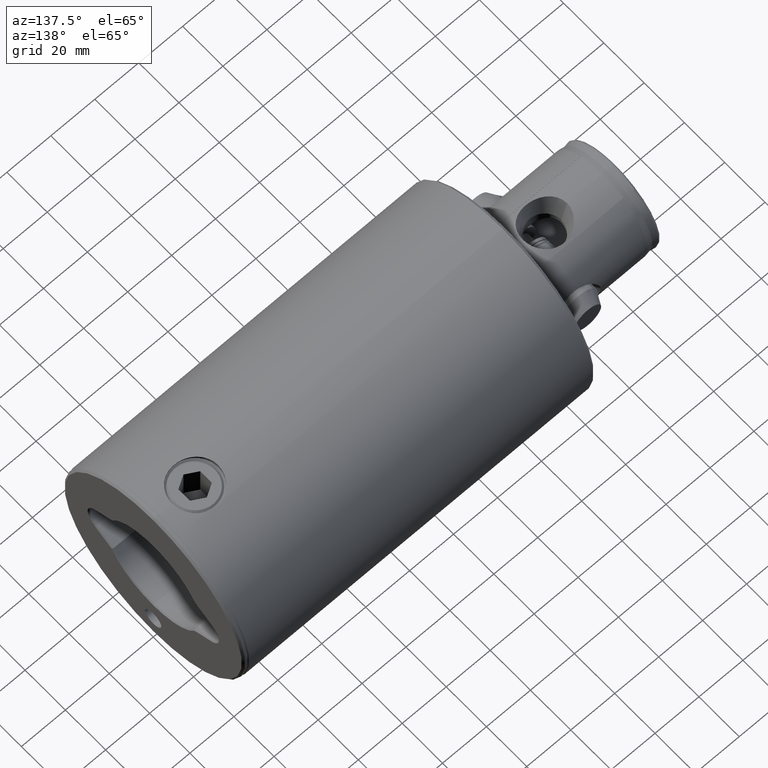
[diagram: clean part render]
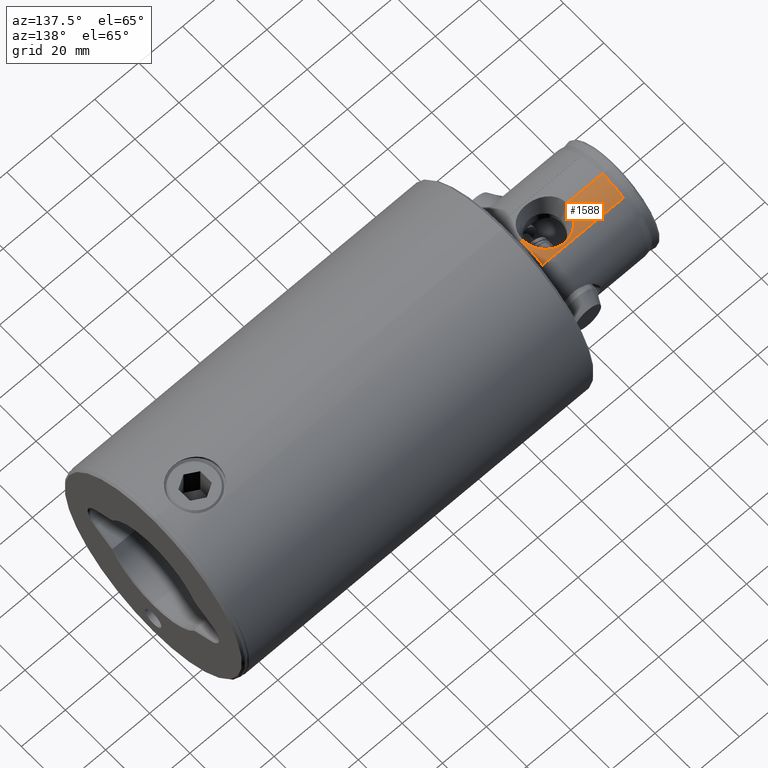
[diagram: same view with one face highlighted and labeled with its STEP entity id]
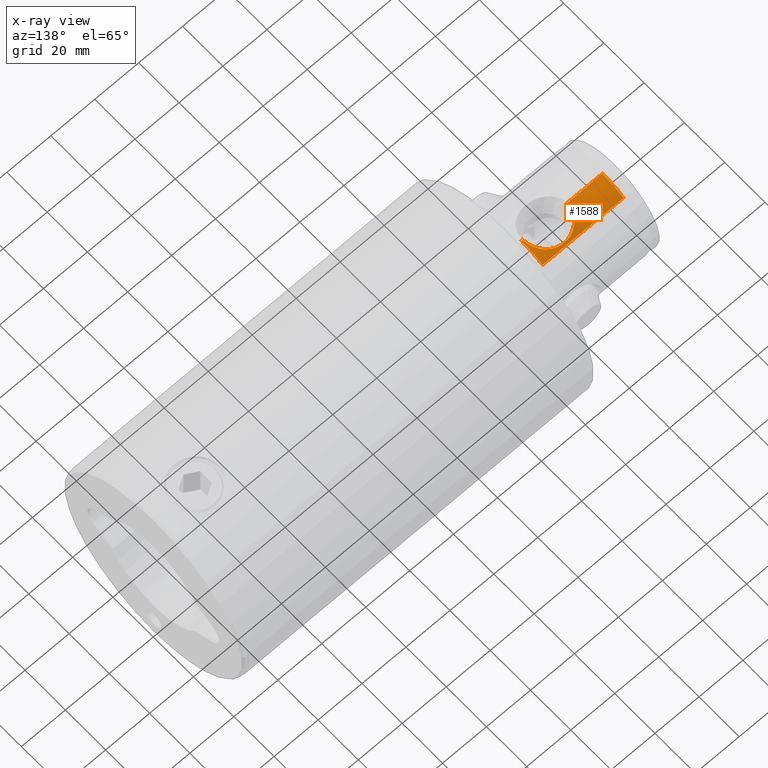
[diagram: x-ray of the same camera — body ghosted, the highlighted face saturated]
A machine part, auxiliary view. The second image highlights one B-rep face of the part: STEP entity #1588.
The next image is the same camera in x-ray: the body ghosted, the highlighted face saturated — about 0% of this face is hidden behind the body in this view.
In plain terms, the highlighted cylindrical surface (partial cylindrical patch) has radius 23 mm, axis along (-1, 0, 0).
Its self-contained STEP definition (entity closure, byte-faithful):
#232 = CARTESIAN_POINT ( 'NONE',  ( 22.71813281594296200, 3.170761861276858900, 168.6844600103815700 ) ) ;
#253 = VERTEX_POINT ( 'NONE', #3894 ) ;
#280 = CARTESIAN_POINT ( 'NONE',  ( 22.71387815539590000, 3.160618468467413200, 187.7014117444485900 ) ) ;
#318 = ORIENTED_EDGE ( 'NONE', *, *, #1888, .F. ) ;
#500 = EDGE_LOOP ( 'NONE', ( #3610, #3334, #1682, #2904, #318, #5067 ) ) ;
#539 = AXIS2_PLACEMENT_3D ( 'NONE', #792, #3493, #4639 ) ;
#543 = CIRCLE ( 'NONE', #539, 23.00000000000000400 ) ;
#621 = CARTESIAN_POINT ( 'NONE',  ( 20.87641210467689800, 9.499939100259105400, 177.5624718942782500 ) ) ;
#638 = CARTESIAN_POINT ( 'NONE',  ( 22.87542745341972500, 1.614374367582114100, 188.1261220397611600 ) ) ;
#650 = CARTESIAN_POINT ( 'NONE',  ( 22.48529584989710600, 4.523971437700147600, 204.3892907336632200 ) ) ;
#653 = CARTESIAN_POINT ( 'NONE',  ( 21.95904793986259000, 6.616008521264852500, 170.9553838362661500 ) ) ;
#663 = CARTESIAN_POINT ( 'NONE',  ( 21.85878400355158400, 7.170288782553583000, 204.3784447546312600 ) ) ;
#665 = CARTESIAN_POINT ( 'NONE',  ( 22.15819509866686600, 5.913370880325223000, 170.3045572128625900 ) ) ;
#687 = CARTESIAN_POINT ( 'NONE',  ( 21.21868447772696000, 8.706727680758517000, 174.1258356743447300 ) ) ;
#734 = AXIS2_PLACEMENT_3D ( 'NONE', #3079, #1511, #1959 ) ;
#792 = CARTESIAN_POINT ( 'NONE',  ( -0.07000000000000000700, 0.0000000000000000000, 167.5000000000000000 ) ) ;
#983 = DIRECTION ( 'NONE',  ( 0.0000000000000000000, 0.0000000000000000000, 1.000000000000000000 ) ) ;
#1012 = CARTESIAN_POINT ( 'NONE',  ( 22.93000000000000300, -1.657710971707994000E-013, 204.3969897273732700 ) ) ;
#1022 = CARTESIAN_POINT ( 'NONE',  ( 22.16101311719293300, 5.902792607974545200, 186.1043129167920300 ) ) ;
#1037 = CARTESIAN_POINT ( 'NONE',  ( 21.75878781003203600, 7.259897403231713400, 171.6576700004557700 ) ) ;
#1072 = CARTESIAN_POINT ( 'NONE',  ( 20.92340394279245400, 9.395806677817409600, 179.8170429585055700 ) ) ;
#1353 = LINE ( 'NONE', #3358, #2769 ) ;
#1413 = CARTESIAN_POINT ( 'NONE',  ( 22.22524399175491200, 5.656081419169866300, 186.3035758216765900 ) ) ;
#1430 = CARTESIAN_POINT ( 'NONE',  ( 21.44513300117665700, 8.132082611923017600, 183.4386958737518700 ) ) ;
#1447 = CARTESIAN_POINT ( 'NONE',  ( 21.63015222194354700, 7.630875192684288600, 184.2504620235778800 ) ) ;
#1461 = CARTESIAN_POINT ( 'NONE',  ( 20.90341073441797100, 9.440184702084954100, 179.4943852145340800 ) ) ;
#1511 = DIRECTION ( 'NONE',  ( 0.0000000000000000000, 0.0000000000000000000, 1.000000000000000000 ) ) ;
#1588 = ADVANCED_FACE ( 'NONE', ( #1895 ), #4212, .T. ) ;
#1635 = CARTESIAN_POINT ( 'NONE',  ( 22.93000000000000300, 1.269368155267936500E-015, 188.2660561681995500 ) ) ;
#1682 = ORIENTED_EDGE ( 'NONE', *, *, #3363, .T. ) ;
#1782 = CARTESIAN_POINT ( 'NONE',  ( 21.27059927753126800, 8.579163075772733300, 173.8327959959385400 ) ) ;
#1804 = CARTESIAN_POINT ( 'NONE',  ( 20.86334365088069700, 9.528620291292226000, 178.2071060570801000 ) ) ;
#1819 = CARTESIAN_POINT ( 'NONE',  ( 22.57262398154612300, 4.049661866725215600, 169.0835080279760500 ) ) ;
#1888 = EDGE_CURVE ( 'NONE', #2580, #3330, #1353, .T. ) ;
#1895 = FACE_OUTER_BOUND ( 'NONE', #500, .T. ) ;
#1959 = DIRECTION ( 'NONE',  ( 1.000000000000000000, 0.0000000000000000000, 0.0000000000000000000 ) ) ;
#2095 = DIRECTION ( 'NONE',  ( 0.0000000000000000000, 0.0000000000000000000, 1.000000000000000000 ) ) ;
#2104 = VERTEX_POINT ( 'NONE', #3236 ) ;
#2185 = CARTESIAN_POINT ( 'NONE',  ( 21.38239134189496600, 8.295668889189112600, 173.2569547478507300 ) ) ;
#2202 = CARTESIAN_POINT ( 'NONE',  ( 22.34654799579782400, 5.154400670018701700, 169.7303418809283600 ) ) ;
#2214 = CARTESIAN_POINT ( 'NONE',  ( 22.89607407092442800, 1.289853053561568900, 168.2208150220196200 ) ) ;
#2227 = CARTESIAN_POINT ( 'NONE',  ( 22.64680025277282000, 3.626937374856779700, 204.3920867424903300 ) ) ;
#2237 = CARTESIAN_POINT ( 'NONE',  ( 21.23070740619014200, 8.868141807118455200, 204.3675721991081400 ) ) ;
#2407 = EDGE_CURVE ( 'NONE', #3973, #2104, #543, .T. ) ;
#2527 = VERTEX_POINT ( 'NONE', #3182 ) ;
#2568 = CARTESIAN_POINT ( 'NONE',  ( 21.07879004462104400, 9.043785352656469100, 181.3941933624966200 ) ) ;
#2580 = VERTEX_POINT ( 'NONE', #1635 ) ;
#2584 = CARTESIAN_POINT ( 'NONE',  ( 22.39153244543899700, 4.968384875512219500, 204.3876674977225600 ) ) ;
#2589 = CARTESIAN_POINT ( 'NONE',  ( 22.93000000000000300, -3.800138617954108700E-019, 168.1339438318005100 ) ) ;
#2601 = CARTESIAN_POINT ( 'NONE',  ( 22.93000000000001000, 0.9045441852154809700, 204.3969897273733200 ) ) ;
#2606 = CARTESIAN_POINT ( 'NONE',  ( 22.93000000000000700, 0.3258471756662523800, 188.2660561681995500 ) ) ;
#2618 = CARTESIAN_POINT ( 'NONE',  ( 22.87683406062028300, 1.810785388000757200, 204.3960692491430700 ) ) ;
#2624 = CARTESIAN_POINT ( 'NONE',  ( 20.87679103490181000, 9.499104714878926700, 178.8509457678297600 ) ) ;
#2640 = CARTESIAN_POINT ( 'NONE',  ( 21.00225479971619800, 9.218288701517517200, 180.7767434335825100 ) ) ;
#2769 = VECTOR ( 'NONE', #983, 1000.000000000000000 ) ;
#2861 = CARTESIAN_POINT ( 'NONE',  ( 22.93000000000000300, 0.0000000000000000000, 167.5000000000000000 ) ) ;
#2904 = ORIENTED_EDGE ( 'NONE', *, *, #3210, .T. ) ;
#2981 = CARTESIAN_POINT ( 'NONE',  ( 21.62688782173729500, 7.640115576512146200, 172.1626015208115100 ) ) ;
#3000 = CARTESIAN_POINT ( 'NONE',  ( 22.22254125005030500, 5.666751708854228300, 170.1047277115100400 ) ) ;
#3028 = CARTESIAN_POINT ( 'NONE',  ( 22.51912190452975400, 4.337142458028830900, 169.2327105463265900 ) ) ;
#3041 = CARTESIAN_POINT ( 'NONE',  ( 22.93000000000000300, 0.3221748880474750700, 168.1339438318004800 ) ) ;
#3079 = CARTESIAN_POINT ( 'NONE',  ( -0.07000000000000000700, 0.0000000000000000000, 167.5000000000000000 ) ) ;
#3180 = LINE ( 'NONE', #2861, #4079 ) ;
#3182 = CARTESIAN_POINT ( 'NONE',  ( 22.93000000000000300, -3.800138617954108700E-019, 168.1339438318005100 ) ) ;
#3210 = EDGE_CURVE ( 'NONE', #253, #3330, #4134, .T. ) ;
#3236 = CARTESIAN_POINT ( 'NONE',  ( 22.93000000000000300, 0.0000000000000000000, 167.5000000000000000 ) ) ;
#3330 = VERTEX_POINT ( 'NONE', #1012 ) ;
#3334 = ORIENTED_EDGE ( 'NONE', *, *, #2407, .F. ) ;
#3358 = CARTESIAN_POINT ( 'NONE',  ( 22.93000000000000300, 0.0000000000000000000, 167.5000000000000000 ) ) ;
#3359 = CARTESIAN_POINT ( 'NONE',  ( 21.76200346940580100, 7.250209475754267900, 184.7542324808671600 ) ) ;
#3363 = EDGE_CURVE ( 'NONE', #3973, #253, #4636, .T. ) ;
#3379 = CARTESIAN_POINT ( 'NONE',  ( 21.22121159782992500, 8.700554704185757200, 182.2889485965027600 ) ) ;
#3395 = CARTESIAN_POINT ( 'NONE',  ( 21.44207803397407000, 8.140152053437896400, 172.9753613800992300 ) ) ;
#3409 = CARTESIAN_POINT ( 'NONE',  ( 21.38532123132872800, 8.288096534869097800, 183.1572577636085800 ) ) ;
#3423 = CARTESIAN_POINT ( 'NONE',  ( 22.40621247381081100, 4.888671184591376400, 169.5557834911254500 ) ) ;
#3457 = EDGE_CURVE ( 'NONE', #2104, #2527, #3180, .T. ) ;
#3493 = DIRECTION ( 'NONE',  ( 0.0000000000000000000, 0.0000000000000000000, -1.000000000000000000 ) ) ;
#3593 = VECTOR ( 'NONE', #2095, 1000.000000000000000 ) ;
#3610 = ORIENTED_EDGE ( 'NONE', *, *, #3457, .F. ) ;
#3620 = EDGE_CURVE ( 'NONE', #2527, #2580, #3979, .T. ) ;
#3739 = CARTESIAN_POINT ( 'NONE',  ( 22.79563345927069000, 2.562301675494139000, 168.4811909222073900 ) ) ;
#3755 = CARTESIAN_POINT ( 'NONE',  ( 21.27329535787796600, 8.572461523809773000, 182.5819277342390600 ) ) ;
#3773 = CARTESIAN_POINT ( 'NONE',  ( 21.07686965761223500, 9.048241734191087500, 175.0201382333533200 ) ) ;
#3789 = CARTESIAN_POINT ( 'NONE',  ( 20.92274040921124000, 9.397284982761100000, 176.5928616501597000 ) ) ;
#3894 = CARTESIAN_POINT ( 'NONE',  ( 20.39338192968112700, 10.49999999999999800, 204.3530803800439300 ) ) ;
#3973 = VERTEX_POINT ( 'NONE', #4133 ) ;
#3979 = B_SPLINE_CURVE_WITH_KNOTS ( 'NONE', 3,
 ( #2589, #3041, #4995, #2214, #4515, #3739, #232, #1819, #3028, #3423, #2202, #3000, #665, #4124, #653, #1037, #2981, #3395, #2185, #1782, #687, #3773, #4973, #3789, #4930, #621, #1804, #2624, #1461, #1072, #2640, #2568, #3379, #3755, #3409, #1430, #1447, #3359, #4530, #4566, #1022, #1413, #4944, #4186, #4583, #280, #4154, #4138, #638, #4552, #4961, #2606, #4172 ),
 .UNSPECIFIED., .F., .F.,
 ( 4, 2, 2, 2, 2, 2, 2, 2, 2, 2, 2, 2, 2, 1, 2, 2, 2, 2, 2, 2, 2, 2, 2, 2, 2, 2, 4 ),
 ( 0.008256872926562462300, 0.009223798869799229200, 0.01019072481303599600, 0.01212457669950953000, 0.01309150264274627800, 0.01405842858598302700, 0.01502535452921977300, 0.01599228047245652300, 0.01792613235893007800, 0.01889305830216688600, 0.01985998424540369800, 0.02179383613187724600, 0.02276076207511406100, 0.02372768801835087300, 0.02469461396158768900, 0.02566153990482450400, 0.02759539179129804500, 0.02856231773453486000, 0.02952924367777166900, 0.03146309556424536200, 0.03243002150748224000, 0.03339694745071911800, 0.03533079933719286700, 0.03629772528042972400, 0.03726465122366658800, 0.03823157716690344500, 0.03919850311014030200 ),
 .UNSPECIFIED. ) ;
#4031 = CARTESIAN_POINT ( 'NONE',  ( 20.39338192968112700, 10.49999999999999800, 167.5000000000000000 ) ) ;
#4079 = VECTOR ( 'NONE', #4823, 1000.000000000000000 ) ;
#4124 = CARTESIAN_POINT ( 'NONE',  ( 22.02652085370125700, 6.387830513924230400, 170.7295830280998200 ) ) ;
#4133 = CARTESIAN_POINT ( 'NONE',  ( 20.39338192968112700, 10.49999999999999800, 167.5000000000000000 ) ) ;
#4134 = B_SPLINE_CURVE_WITH_KNOTS ( 'NONE', 3,
 ( #4525, #2237, #663, #2584, #650, #2227, #4968, #2618, #2601, #4579 ),
 .UNSPECIFIED., .F., .F.,
 ( 4, 2, 2, 2, 4 ),
 ( 2.216089974725557400E-007, 0.005424729390567326400, 0.006780856335959790400, 0.008136983281352254400, 0.01084923717213718800 ),
 .UNSPECIFIED. ) ;
#4138 = CARTESIAN_POINT ( 'NONE',  ( 22.82272722092543300, 2.240956493810976700, 187.9892055072895100 ) ) ;
#4154 = CARTESIAN_POINT ( 'NONE',  ( 22.79025209790065500, 2.550193507083685000, 187.9042715468905600 ) ) ;
#4172 = CARTESIAN_POINT ( 'NONE',  ( 22.93000000000000300, 1.269368155267936500E-015, 188.2660561681995500 ) ) ;
#4186 = CARTESIAN_POINT ( 'NONE',  ( 22.52413578853685300, 4.342539717039685800, 187.1835164418719400 ) ) ;
#4212 = CYLINDRICAL_SURFACE ( 'NONE', #734, 23.00000000000000400 ) ;
#4515 = CARTESIAN_POINT ( 'NONE',  ( 22.87549887861002100, 1.613916681305613400, 168.2736893362472900 ) ) ;
#4525 = CARTESIAN_POINT ( 'NONE',  ( 20.39338192968112700, 10.49999999999999800, 204.3530803800439300 ) ) ;
#4530 = CARTESIAN_POINT ( 'NONE',  ( 21.96189688301385300, 6.606511785266173200, 185.4542836575617500 ) ) ;
#4552 = CARTESIAN_POINT ( 'NONE',  ( 22.89565459957379200, 1.297029897675340000, 188.1781068200012600 ) ) ;
#4566 = CARTESIAN_POINT ( 'NONE',  ( 22.02923589589888600, 6.378454170641778600, 185.6793974777863800 ) ) ;
#4579 = CARTESIAN_POINT ( 'NONE',  ( 22.93000000000000300, -1.657710971707994000E-013, 204.3969897273732700 ) ) ;
#4583 = CARTESIAN_POINT ( 'NONE',  ( 22.66962293751893400, 3.463770267452833900, 187.5825049587917900 ) ) ;
#4636 = LINE ( 'NONE', #4031, #3593 ) ;
#4639 = DIRECTION ( 'NONE',  ( 1.000000000000000000, 0.0000000000000000000, 0.0000000000000000000 ) ) ;
#4823 = DIRECTION ( 'NONE',  ( 0.0000000000000000000, 0.0000000000000000000, 1.000000000000000000 ) ) ;
#4930 = CARTESIAN_POINT ( 'NONE',  ( 20.90275232628293300, 9.441646192692291000, 176.9174346124413500 ) ) ;
#4944 = CARTESIAN_POINT ( 'NONE',  ( 22.41049301108661500, 4.889179958554823500, 186.8624167728127400 ) ) ;
#4961 = CARTESIAN_POINT ( 'NONE',  ( 22.92295416695741700, 0.6539391551087376800, 188.2481067395495400 ) ) ;
#4968 = CARTESIAN_POINT ( 'NONE',  ( 22.71469927599464700, 3.172776888507838700, 204.3932622512302500 ) ) ;
#4973 = CARTESIAN_POINT ( 'NONE',  ( 21.00087793346856200, 9.221418700823566200, 175.6364501984809900 ) ) ;
#4995 = CARTESIAN_POINT ( 'NONE',  ( 22.92323372899271700, 0.6445787887305951500, 168.1511790659201900 ) ) ;
#5067 = ORIENTED_EDGE ( 'NONE', *, *, #3620, .F. ) ;